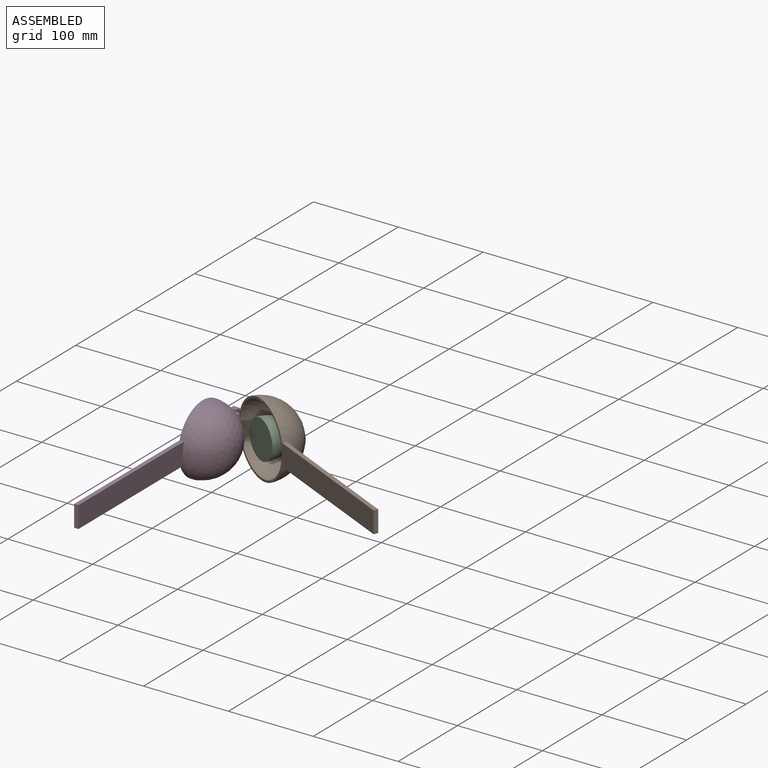
[diagram: assembled view]
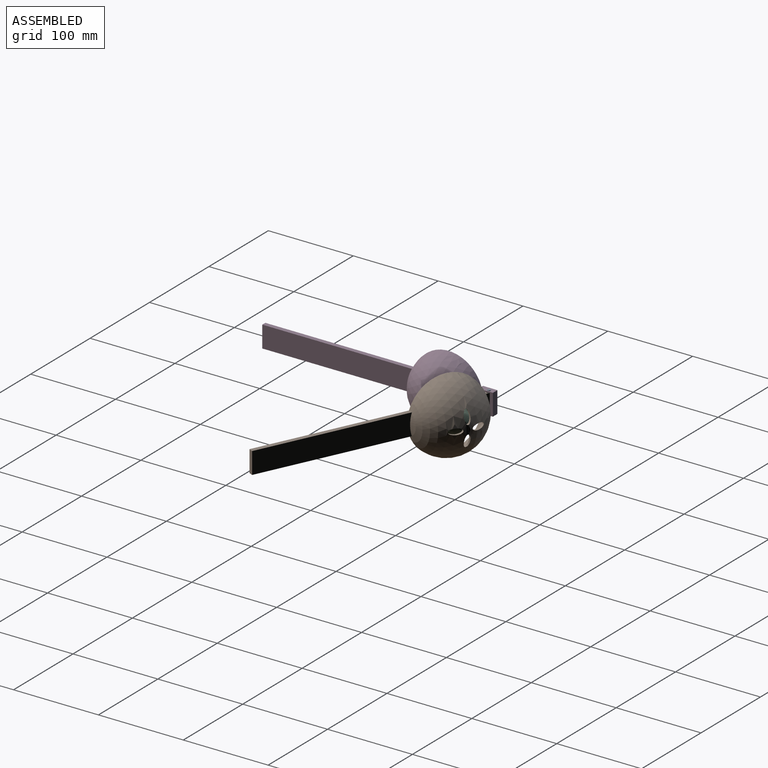
[diagram: assembled view, second angle]
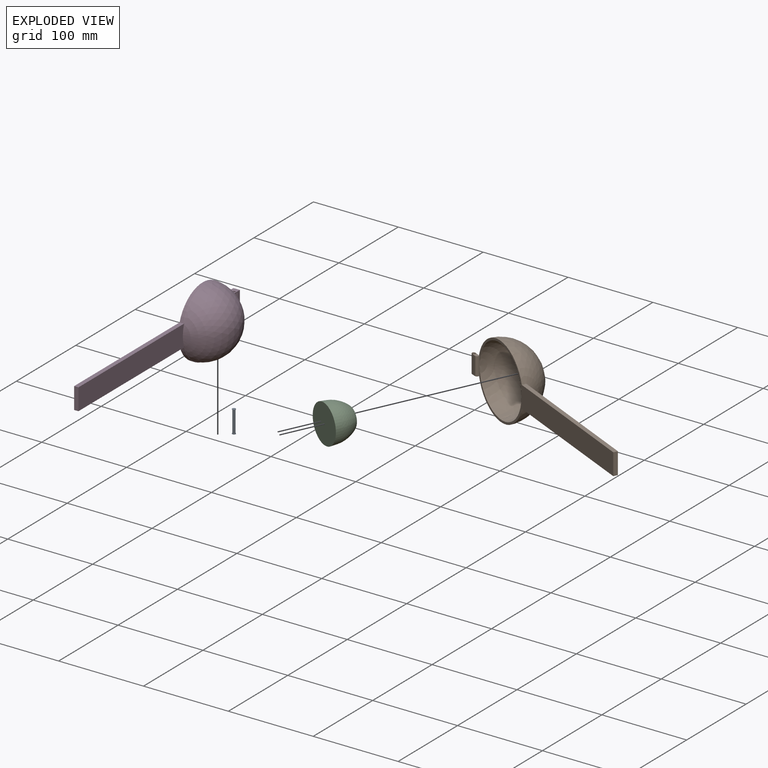
[diagram: exploded view]
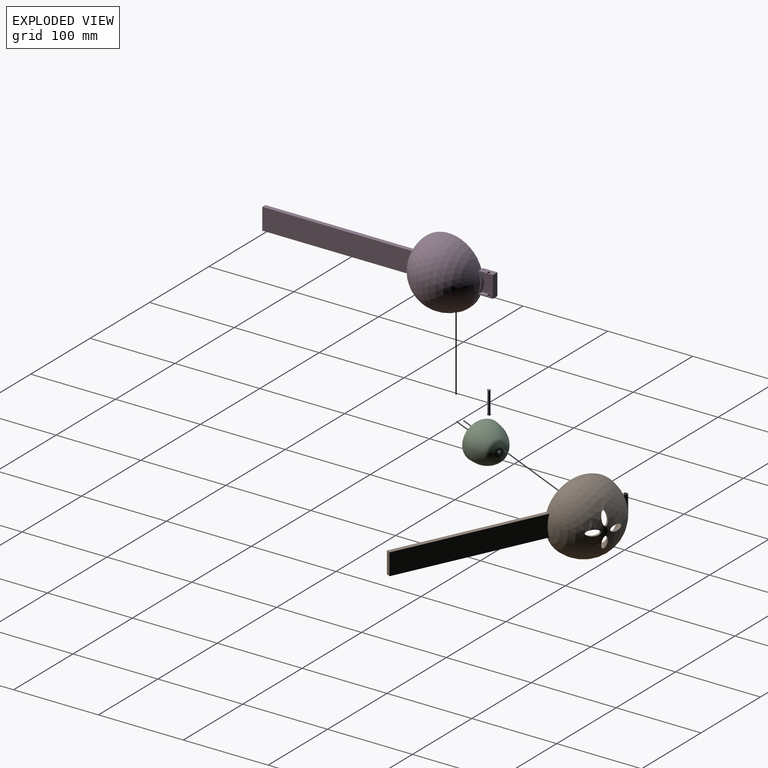
[diagram: exploded view, second angle]
ASSEMBLY  parts=4 mates=3
PART A: 7 faces, bbox 3.9x3.9x26.5 mm
  f0: cylinder r=1.52mm len=25.53mm, axis (0,0,1), area 244.4mm2, adj f3,f6
  f1: cylinder r=1.97mm len=3.94mm, axis (0,0,-1), area 6.3mm2, adj f2,f3
  f2: plane 3.94x3.94mm, normal (0,0,1), area 12.2mm2, adj f1
  f3: plane 3.94x3.94mm, normal (0,0,-1), area 4.9mm2, adj f0,f1
  f4: cylinder r=1.97mm len=3.94mm, axis (0,0,1), area 6.3mm2, adj f5,f6
  f5: plane 3.94x3.94mm, normal (0,0,-1), area 12.2mm2, adj f4
  f6: plane 3.94x3.94mm, normal (0,0,1), area 4.9mm2, adj f0,f4
PART B: 21 faces, bbox 47.2x269.4x86.4 mm
  f0: sphere r=43.18mm, area 11225.3mm2, adj f1,f3,f5,f6,f7,f14,f15,f16
  f1: plane 260.57x86.36mm, normal (-1,0,0), area 5099.5mm2, adj f0,f2,f3,f4,f5,f8,f9,f10
  f2: sphere r=40.64mm, area 10016.2mm2, adj f1,f14,f15,f16,f17
  f3: plane 177.75x5.08mm, normal (0,0,-1), area 901.9mm2, adj f0,f1,f4,f6
  f4: plane 25.4x5.08mm, normal (0,-1,0), area 129mm2, adj f1,f3,f5,f6
  f5: plane 177.81x5.08mm, normal (0,0,1), area 902.2mm2, adj f0,f1,f4,f6
  f6: plane 177.81x25.4mm, normal (1,0,0), area 4482.9mm2, adj f0,f3,f4,f5
  f7: plane 21.59x6.68mm, normal (1,0,0), area 124.1mm2, adj f0,f8,f10,f19
  f8: plane 10.03x4.06mm, normal (0,0,1), area 27.4mm2, adj f1,f7,f9,f11,f12,f13,f18,f19
  f9: plane 21.59x1.52mm, normal (0,-1,0), area 32.9mm2, adj f1,f8,f10,f12
  f10: plane 10.03x4.06mm, normal (0,0,-1), area 27.4mm2, adj f1,f7,f9,f11,f12,f13,f18,f19
  f11: plane 21.59x5.06mm, normal (-1,0,0), area 109.2mm2, adj f8,f10,f12,f18
  f12: cylinder r=2.54mm len=21.59mm, axis (0,0,1), area 86.1mm2, adj f8,f9,f10,f11
  f13: cylinder r=1.78mm len=21.59mm, axis (0,0,1), area 241.2mm2, adj f8,f10
  f14: extruded ~15.24x7.69mm, area 97.9mm2, adj f0,f2
  f15: extruded ~15.24x7.69mm, area 97.9mm2, adj f0,f2
  f16: extruded ~15.24x7.69mm, area 97.9mm2, adj f0,f2
  f17: extruded ~15.24x7.69mm, area 97.9mm2, adj f0,f2
  f18: cylinder r=2.54mm len=21.59mm, axis (0,0,-1), area 56.3mm2, adj f8,f10,f11,f20
  f19: cylinder r=2.54mm len=21.59mm, axis (0,0,-1), area 33.8mm2, adj f7,f8,f10,f20
  f20: cylinder r=1.78mm len=21.59mm, axis (0,0,1), area 57.5mm2, adj f8,f10,f18,f19
PART C: 2 faces, bbox 135x135x90 mm
  f0: revolved ~45.01x22.5mm, area 0mm2, adj f1
  f1: plane 135.02x135.02mm, normal (0,0,1), area 1591mm2, adj f0
PART D: 22 faces, bbox 43.2x271.7x84.7 mm
  f0: plane 254.68x81.28mm, normal (-1,0,0), area 5365.7mm2, adj f2,f3,f4,f5,f6,f7,f19
  f1: plane 271.67x53.34mm, normal (1,0,0), area 4671.2mm2, adj f4,f5,f6,f7,f8,f9,f10,f11
  f2: cylinder r=40.64mm len=77.21mm, axis (-1,0,0), area 337mm2, adj f0,f5,f9,f18
  f3: sphere r=36.83mm, area 8522.8mm2, adj f0
  f4: cylinder r=40.64mm len=77.21mm, axis (-1,0,0), area 517.4mm2, adj f0,f1,f7,f10
  f5: plane 177.86x5.13mm, normal (0,0,1), area 901.7mm2, adj f0,f1,f2,f6,f18
  f6: plane 25.4x5.08mm, normal (0,-1,0), area 129mm2, adj f0,f1,f5,f7
  f7: plane 177.47x5.08mm, normal (0,0,-1), area 901.5mm2, adj f0,f1,f4,f6
  f8: sphere r=40.64mm, area 9086.8mm2, adj f1,f18
  f9: plane 17.38x7.67mm, normal (0,0,1), area 121.1mm2, adj f1,f2,f17,f18,f19,f20,f21
  f10: plane 16.99x7.62mm, normal (0,0,-1), area 120.9mm2, adj f1,f4,f16,f19,f20,f21
  f11: plane 22.86x4.57mm, normal (0,-1,0), area 104.5mm2, adj f1,f12,f14,f15
  f12: plane 12.7x4.57mm, normal (0,0,-1), area 49.5mm2, adj f1,f11,f13,f15,f17
  f13: cylinder r=25mm len=22.86mm, axis (1,0,0), area 108.6mm2, adj f1,f12,f14,f15
  f14: plane 12.7x4.57mm, normal (0,0,1), area 49.5mm2, adj f1,f11,f13,f15,f16
  f15: plane 22.86x12.7mm, normal (1,0,0), area 247.7mm2, adj f11,f12,f13,f14
  f16: cylinder r=1.65mm len=3.3mm, axis (0,0,1), area 13.2mm2, adj f10,f14
  f17: cylinder r=1.65mm len=3.3mm, axis (0,0,1), area 13.2mm2, adj f9,f12
  f18: torus R=35.56mm, axis (1,0,0), area 183.6mm2, adj f2,f5,f8,f9
  f19: plane 25.4x2.54mm, normal (0,-1,0), area 64.5mm2, adj f0,f9,f10,f20
  f20: plane 25.4x16.99mm, normal (-1,0,0), area 431.6mm2, adj f9,f10,f19,f21
  f21: plane 25.4x7.62mm, normal (0,1,0), area 193.5mm2, adj f1,f9,f10,f20
PLACE A t=(82.29,110.26,-84.32)mm
PLACE B rot(axis=(0,0,1),64.8deg) t=(86.72,48.48,-84.3)mm
PLACE C rot(axis=(0.95,-0.21,-0.21),92.7deg) t=(181.22,161.25,-84.3)mm
PLACE D t=(82.29,110.26,-84.44)mm fixed
MATE revolute B.f20 <-> A.f0  axis (0,0,1) through (84.83,159.5,-84.38)mm
MATE fastened C.f1 <-> B.f1  axis (-0.43,-0.91,0) through (129.92,140.44,-84.3)mm
MATE fastened A.f0 <-> D.f16  axis (0,0,1) through (84.83,159.5,-97.14)mm
